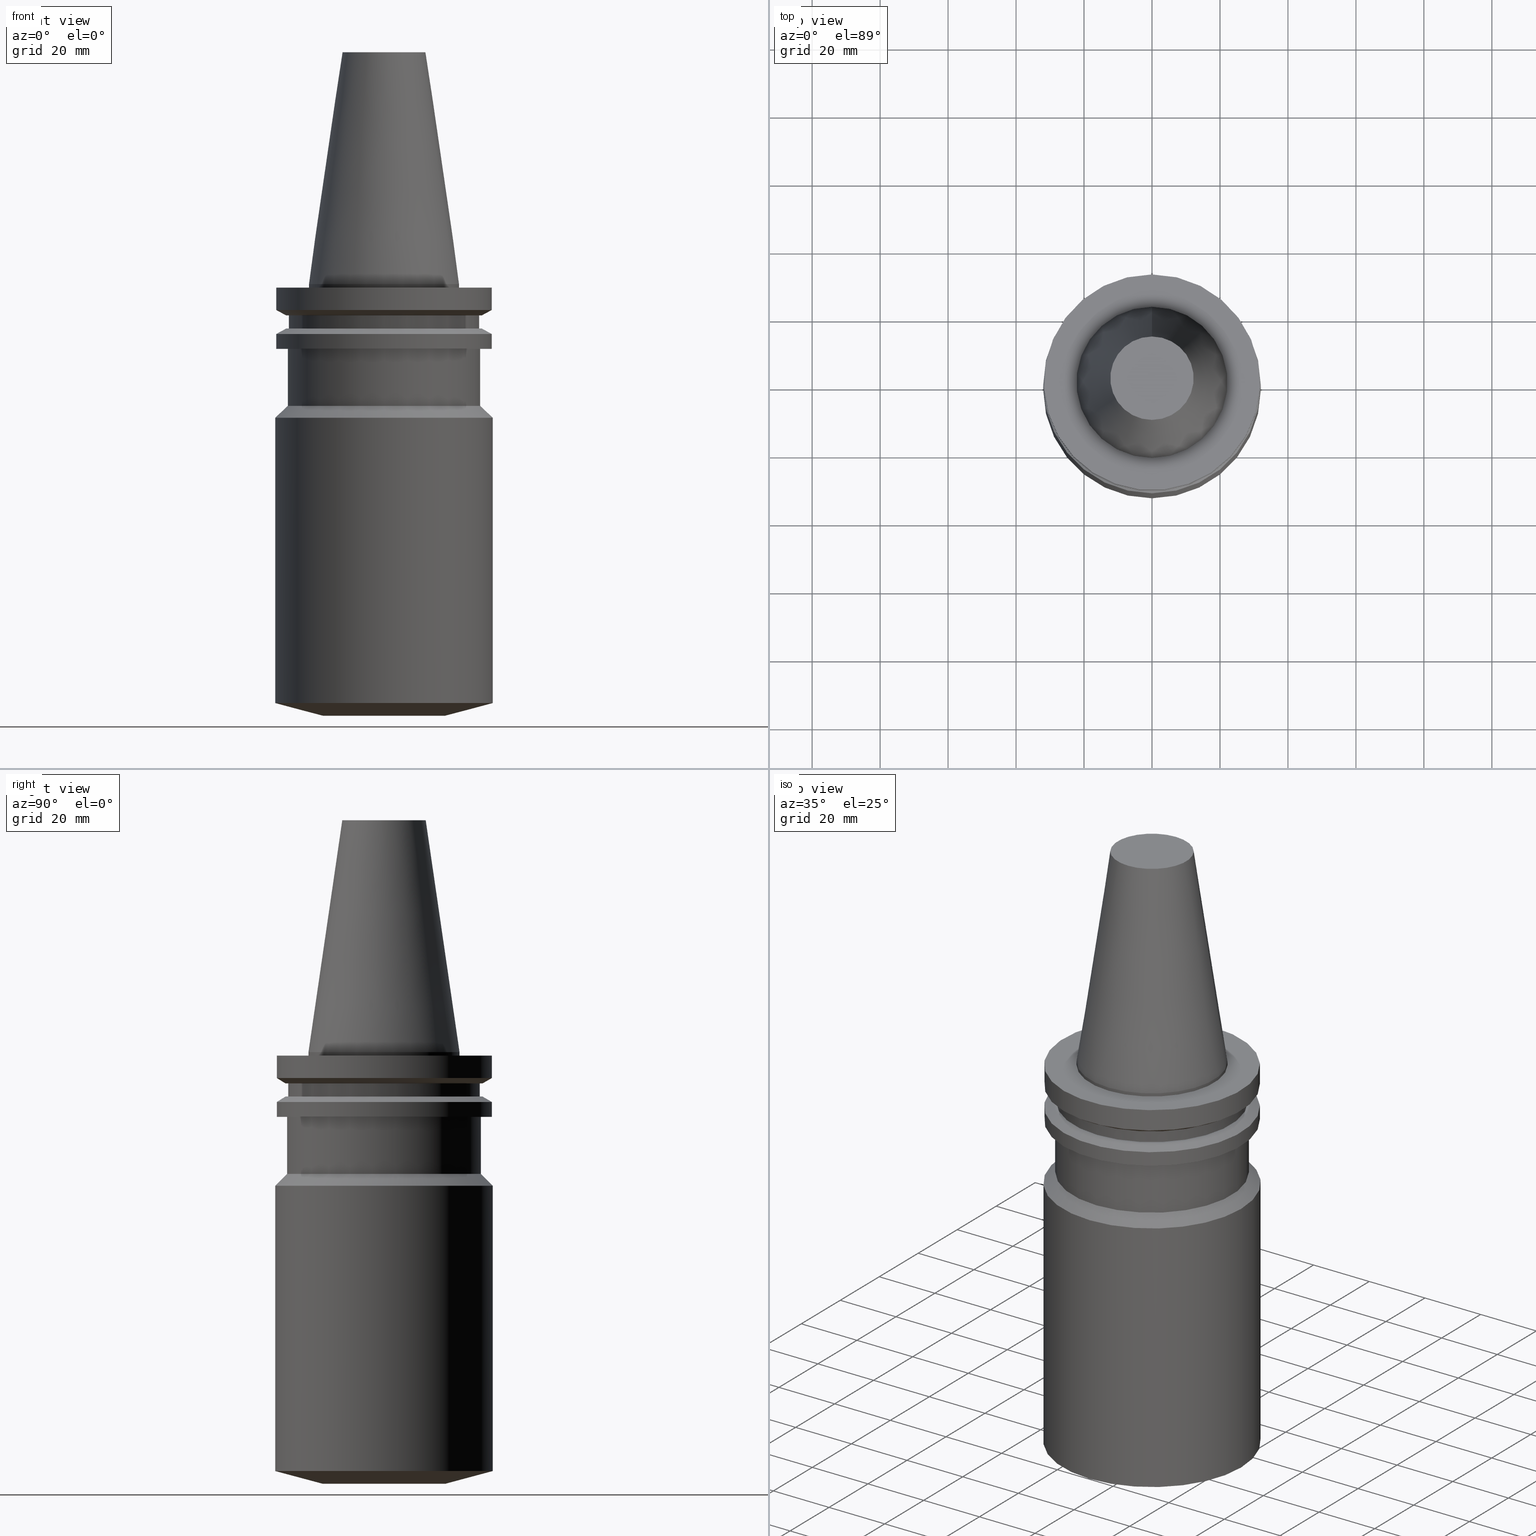
[diagram: canonical four-view strip — front | top / right | iso, engineering-drawing reading convention]
A machine part, canonical four-view strip (front | top / right | iso — engineering-drawing reading convention). The complete STEP part file that produces these views, byte-faithful:
ISO-10303-21;
HEADER;
FILE_DESCRIPTION((''),'1');
FILE_NAME('V:/01_Dxf_Field-HP\X2\FF71FF6FFF8CFF9F5916\X0\2013/BIGKAISER\X2\FF76FF80FF9BFF78FF9E63B28F095206\X0\_BKUS_201803/BCV40Y-BSL/BCV40Y-BSL1.250-5.stp','2018-03-13T06:26:53',(''),(''),'Spatial Interop R21 SP3','Kubotek KeyCreator 2011 V10.0.2 (22737)',' ');
FILE_SCHEMA(('automotive_design'));
ENDSEC;
DATA;
#1=MECHANICAL_DESIGN_GEOMETRIC_PRESENTATION_REPRESENTATION(' ',(#10,#11,#12,#13,#14,#15,#16,#17,#18,#19,#20,#21,#22,#23,#24,#25,#26,#27,#28,#29,#30,#31,#32,#33,#34,#35,#36,#37,#38,#39,#40,#41,#42,#43),#6);
#2=PRODUCT_DEFINITION_CONTEXT('',#44,'design');
#3=APPLICATION_PROTOCOL_DEFINITION('INTERNATIONAL STANDARD','automotive_design',1994,#44);
#4=PRODUCT_CATEGORY_RELATIONSHIP('NONE','NONE',#45,#46);
#5=SHAPE_DEFINITION_REPRESENTATION(#47,#48);
#6= (GEOMETRIC_REPRESENTATION_CONTEXT(3)GLOBAL_UNCERTAINTY_ASSIGNED_CONTEXT((#51))GLOBAL_UNIT_ASSIGNED_CONTEXT((#53,#54,#55))REPRESENTATION_CONTEXT('NONE','WORKSPACE'));
#10=STYLED_ITEM('',(#57,#58),#59);
#11=STYLED_ITEM('',(#60,#61),#62);
#12=STYLED_ITEM('',(#63,#64),#65);
#13=STYLED_ITEM('',(#66),#67);
#14=STYLED_ITEM('',(#68,#69),#70);
#15=STYLED_ITEM('',(#71),#72);
#16=STYLED_ITEM('',(#73),#74);
#17=STYLED_ITEM('',(#75),#76);
#18=STYLED_ITEM('',(#77,#78),#79);
#19=STYLED_ITEM('',(#80),#81);
#20=STYLED_ITEM('',(#82),#83);
#21=STYLED_ITEM('',(#84,#85),#86);
#22=STYLED_ITEM('',(#87,#88),#89);
#23=STYLED_ITEM('',(#90),#91);
#24=STYLED_ITEM('',(#92),#93);
#25=STYLED_ITEM('',(#94,#95),#96);
#26=STYLED_ITEM('',(#97,#98),#99);
#27=STYLED_ITEM('',(#100,#101),#102);
#28=STYLED_ITEM('',(#103),#104);
#29=STYLED_ITEM('',(#105),#106);
#30=STYLED_ITEM('',(#107),#108);
#31=STYLED_ITEM('',(#109),#110);
#32=STYLED_ITEM('',(#111),#112);
#33=STYLED_ITEM('',(#113,#114),#115);
#34=STYLED_ITEM('',(#116,#117),#118);
#35=STYLED_ITEM('',(#119,#120),#121);
#36=STYLED_ITEM('',(#122),#123);
#37=STYLED_ITEM('',(#124,#125),#126);
#38=STYLED_ITEM('',(#127,#128),#129);
#39=STYLED_ITEM('',(#130,#131),#132);
#40=STYLED_ITEM('',(#133,#134),#135);
#41=STYLED_ITEM('',(#136),#137);
#42=STYLED_ITEM('',(#138,#139),#140);
#43=STYLED_ITEM('',(#141),#142);
#44=APPLICATION_CONTEXT(' ');
#45=PRODUCT_CATEGORY('part','NONE');
#46=PRODUCT_RELATED_PRODUCT_CATEGORY('detail',' ',(#143));
#47=PRODUCT_DEFINITION_SHAPE('NONE','NONE',#144);
#48=ADVANCED_BREP_SHAPE_REPRESENTATION('Unnamed[1]',(#132,#145),#6);
#51=UNCERTAINTY_MEASURE_WITH_UNIT(LENGTH_MEASURE(1.0E-006),#53,'','');
#53= (CONVERSION_BASED_UNIT('MILLIMETRE',#148)LENGTH_UNIT()NAMED_UNIT(#151));
#54= (NAMED_UNIT(#153)PLANE_ANGLE_UNIT()SI_UNIT($,.RADIAN.));
#55= (NAMED_UNIT(#153)SOLID_ANGLE_UNIT()SI_UNIT($,.STERADIAN.));
#57=PRESENTATION_STYLE_ASSIGNMENT((#159));
#58=PRESENTATION_STYLE_ASSIGNMENT((#160));
#59=ADVANCED_FACE('Unnamed[1]',(#161,#162),#163,.T.);
#60=PRESENTATION_STYLE_ASSIGNMENT((#164));
#61=PRESENTATION_STYLE_ASSIGNMENT((#165));
#62=ADVANCED_FACE('Unnamed[1]',(#166,#167),#168,.T.);
#63=PRESENTATION_STYLE_ASSIGNMENT((#169));
#64=PRESENTATION_STYLE_ASSIGNMENT((#170));
#65=ADVANCED_FACE('Unnamed[1]',(#171,#172),#173,.T.);
#66=PRESENTATION_STYLE_ASSIGNMENT((#174));
#67=EDGE_CURVE('Unnamed[1]',#175,#175,#176,.T.);
#68=PRESENTATION_STYLE_ASSIGNMENT((#177));
#69=PRESENTATION_STYLE_ASSIGNMENT((#178));
#70=ADVANCED_FACE('Unnamed[1]',(#179,#180),#181,.T.);
#71=PRESENTATION_STYLE_ASSIGNMENT((#182));
#72=EDGE_CURVE('Unnamed[1]',#183,#183,#184,.T.);
#73=PRESENTATION_STYLE_ASSIGNMENT((#185));
#74=EDGE_CURVE('Unnamed[1]',#186,#186,#187,.T.);
#75=PRESENTATION_STYLE_ASSIGNMENT((#188));
#76=EDGE_CURVE('Unnamed[1]',#189,#189,#190,.T.);
#77=PRESENTATION_STYLE_ASSIGNMENT((#191));
#78=PRESENTATION_STYLE_ASSIGNMENT((#192));
#79=ADVANCED_FACE('Unnamed[1]',(#193,#194),#195,.T.);
#80=PRESENTATION_STYLE_ASSIGNMENT((#196));
#81=EDGE_CURVE('Unnamed[1]',#197,#197,#198,.T.);
#82=PRESENTATION_STYLE_ASSIGNMENT((#199));
#83=EDGE_CURVE('Unnamed[1]',#200,#200,#201,.T.);
#84=PRESENTATION_STYLE_ASSIGNMENT((#202));
#85=PRESENTATION_STYLE_ASSIGNMENT((#203));
#86=ADVANCED_FACE('Unnamed[1]',(#204,#205),#206,.T.);
#87=PRESENTATION_STYLE_ASSIGNMENT((#207));
#88=PRESENTATION_STYLE_ASSIGNMENT((#208));
#89=ADVANCED_FACE('Unnamed[1]',(#209,#210),#211,.T.);
#90=PRESENTATION_STYLE_ASSIGNMENT((#212));
#91=EDGE_CURVE('Unnamed[1]',#213,#213,#214,.T.);
#92=PRESENTATION_STYLE_ASSIGNMENT((#215));
#93=EDGE_CURVE('Unnamed[1]',#216,#216,#217,.T.);
#94=PRESENTATION_STYLE_ASSIGNMENT((#218));
#95=PRESENTATION_STYLE_ASSIGNMENT((#219));
#96=ADVANCED_FACE('Unnamed[1]',(#220,#221),#222,.T.);
#97=PRESENTATION_STYLE_ASSIGNMENT((#223));
#98=PRESENTATION_STYLE_ASSIGNMENT((#224));
#99=ADVANCED_FACE('Unnamed[1]',(#225,#226),#227,.T.);
#100=PRESENTATION_STYLE_ASSIGNMENT((#228));
#101=PRESENTATION_STYLE_ASSIGNMENT((#229));
#102=ADVANCED_FACE('Unnamed[1]',(#230,#231),#232,.T.);
#103=PRESENTATION_STYLE_ASSIGNMENT((#233));
#104=EDGE_CURVE('Unnamed[1]',#234,#234,#235,.T.);
#105=PRESENTATION_STYLE_ASSIGNMENT((#236));
#106=EDGE_CURVE('Unnamed[1]',#237,#237,#238,.T.);
#107=PRESENTATION_STYLE_ASSIGNMENT((#239));
#108=EDGE_CURVE('Unnamed[1]',#240,#240,#241,.T.);
#109=PRESENTATION_STYLE_ASSIGNMENT((#242));
#110=EDGE_CURVE('Unnamed[1]',#243,#243,#244,.T.);
#111=PRESENTATION_STYLE_ASSIGNMENT((#245));
#112=EDGE_CURVE('Unnamed[1]',#246,#246,#247,.T.);
#113=PRESENTATION_STYLE_ASSIGNMENT((#248));
#114=PRESENTATION_STYLE_ASSIGNMENT((#249));
#115=ADVANCED_FACE('Unnamed[1]',(#250,#251),#252,.T.);
#116=PRESENTATION_STYLE_ASSIGNMENT((#253));
#117=PRESENTATION_STYLE_ASSIGNMENT((#254));
#118=ADVANCED_FACE('Unnamed[1]',(#255,#256),#257,.T.);
#119=PRESENTATION_STYLE_ASSIGNMENT((#258));
#120=PRESENTATION_STYLE_ASSIGNMENT((#259));
#121=ADVANCED_FACE('Unnamed[1]',(#260),#261,.T.);
#122=PRESENTATION_STYLE_ASSIGNMENT((#262));
#123=EDGE_CURVE('Unnamed[1]',#263,#263,#264,.T.);
#124=PRESENTATION_STYLE_ASSIGNMENT((#265));
#125=PRESENTATION_STYLE_ASSIGNMENT((#266));
#126=ADVANCED_FACE('Unnamed[1]',(#267,#268),#269,.T.);
#127=PRESENTATION_STYLE_ASSIGNMENT((#270));
#128=PRESENTATION_STYLE_ASSIGNMENT((#271));
#129=ADVANCED_FACE('Unnamed[1]',(#272),#273,.T.);
#130=PRESENTATION_STYLE_ASSIGNMENT((#274));
#131=PRESENTATION_STYLE_ASSIGNMENT((#275));
#132=MANIFOLD_SOLID_BREP('Unnamed[1]',#276);
#133=PRESENTATION_STYLE_ASSIGNMENT((#277));
#134=PRESENTATION_STYLE_ASSIGNMENT((#278));
#135=ADVANCED_FACE('Unnamed[1]',(#279,#280),#281,.T.);
#136=PRESENTATION_STYLE_ASSIGNMENT((#282));
#137=EDGE_CURVE('Unnamed[1]',#283,#283,#284,.T.);
#138=PRESENTATION_STYLE_ASSIGNMENT((#285));
#139=PRESENTATION_STYLE_ASSIGNMENT((#286));
#140=ADVANCED_FACE('Unnamed[1]',(#287,#288),#289,.T.);
#141=PRESENTATION_STYLE_ASSIGNMENT((#290));
#142=EDGE_CURVE('Unnamed[1]',#291,#291,#292,.T.);
#143=PRODUCT('Unnamed[1]','Unnamed[1]','PART-Unnamed[1]-DESC',(#293));
#144=PRODUCT_DEFINITION('NONE','NONE',#294,#2);
#145=AXIS2_PLACEMENT_3D('',#295,#296,#297);
#148=LENGTH_MEASURE_WITH_UNIT(LENGTH_MEASURE(1.0),#298);
#151=DIMENSIONAL_EXPONENTS(1.0,0.0,0.0,0.0,0.0,0.0,0.0);
#153=DIMENSIONAL_EXPONENTS(0.0,0.0,0.0,0.0,0.0,0.0,0.0);
#159=SURFACE_STYLE_USAGE(.BOTH.,#299);
#160=CURVE_STYLE('',#300,POSITIVE_LENGTH_MEASURE(1000.0),#301);
#161=FACE_BOUND('',#302,.T.);
#162=FACE_BOUND('',#303,.T.);
#163=CYLINDRICAL_SURFACE('',#304,28.4999999999994);
#164=SURFACE_STYLE_USAGE(.BOTH.,#305);
#165=CURVE_STYLE('',#306,POSITIVE_LENGTH_MEASURE(1000.0),#307);
#166=FACE_BOUND('',#308,.T.);
#167=FACE_BOUND('',#309,.T.);
#168=CONICAL_SURFACE('',#310,30.365080955,1.04719755034994);
#169=SURFACE_STYLE_USAGE(.BOTH.,#311);
#170=CURVE_STYLE('',#312,POSITIVE_LENGTH_MEASURE(1000.0),#313);
#171=FACE_BOUND('',#314,.T.);
#172=FACE_BOUND('',#315,.T.);
#173=CYLINDRICAL_SURFACE('',#316,28.18);
#174=CURVE_STYLE('',#317,POSITIVE_LENGTH_MEASURE(1000.0),#318);
#175=VERTEX_POINT('',#319);
#176=CIRCLE('',#320,31.75);
#177=SURFACE_STYLE_USAGE(.BOTH.,#321);
#178=CURVE_STYLE('',#322,POSITIVE_LENGTH_MEASURE(1000.0),#323);
#179=FACE_BOUND('',#324,.T.);
#180=FACE_BOUND('',#325,.T.);
#181=CONICAL_SURFACE('',#326,17.2484375007384,0.144812498217751);
#182=CURVE_STYLE('',#327,POSITIVE_LENGTH_MEASURE(1000.0),#328);
#183=VERTEX_POINT('',#329);
#184=CIRCLE('',#330,22.225);
#185=CURVE_STYLE('',#331,POSITIVE_LENGTH_MEASURE(1000.0),#332);
#186=VERTEX_POINT('',#333);
#187=CIRCLE('',#334,31.75);
#188=CURVE_STYLE('',#335,POSITIVE_LENGTH_MEASURE(1000.0),#336);
#189=VERTEX_POINT('',#337);
#190=CIRCLE('',#338,28.95591319);
#191=SURFACE_STYLE_USAGE(.BOTH.,#339);
#192=CURVE_STYLE('',#340,POSITIVE_LENGTH_MEASURE(1000.0),#341);
#193=FACE_BOUND('',#342,.T.);
#194=FACE_BOUND('',#343,.T.);
#195=CYLINDRICAL_SURFACE('',#344,32.0000000000387);
#196=CURVE_STYLE('',#345,POSITIVE_LENGTH_MEASURE(1000.0),#346);
#197=VERTEX_POINT('',#347);
#198=CIRCLE('',#348,22.225);
#199=CURVE_STYLE('',#349,POSITIVE_LENGTH_MEASURE(1000.0),#350);
#200=VERTEX_POINT('',#351);
#201=CIRCLE('',#352,28.18);
#202=SURFACE_STYLE_USAGE(.BOTH.,#353);
#203=CURVE_STYLE('',#354,POSITIVE_LENGTH_MEASURE(1000.0),#355);
#204=FACE_BOUND('',#356,.T.);
#205=FACE_OUTER_BOUND('',#357,.T.);
#206=PLANE('',#358);
#207=SURFACE_STYLE_USAGE(.BOTH.,#359);
#208=CURVE_STYLE('',#360,POSITIVE_LENGTH_MEASURE(1000.0),#361);
#209=FACE_OUTER_BOUND('',#362,.T.);
#210=FACE_BOUND('',#363,.T.);
#211=PLANE('',#364);
#212=CURVE_STYLE('',#365,POSITIVE_LENGTH_MEASURE(1000.0),#366);
#213=VERTEX_POINT('',#367);
#214=CIRCLE('',#368,18.0000000000002);
#215=CURVE_STYLE('',#369,POSITIVE_LENGTH_MEASURE(1000.0),#370);
#216=VERTEX_POINT('',#371);
#217=CIRCLE('',#372,28.4999999999991);
#218=SURFACE_STYLE_USAGE(.BOTH.,#373);
#219=CURVE_STYLE('',#374,POSITIVE_LENGTH_MEASURE(1000.0),#375);
#220=FACE_BOUND('',#376,.T.);
#221=FACE_OUTER_BOUND('',#377,.T.);
#222=PLANE('',#378);
#223=SURFACE_STYLE_USAGE(.BOTH.,#379);
#224=CURVE_STYLE('',#380,POSITIVE_LENGTH_MEASURE(1000.0),#381);
#225=FACE_BOUND('',#382,.T.);
#226=FACE_BOUND('',#383,.T.);
#227=CONICAL_SURFACE('',#384,30.2500000000389,0.785398163397475);
#228=SURFACE_STYLE_USAGE(.BOTH.,#385);
#229=CURVE_STYLE('',#386,POSITIVE_LENGTH_MEASURE(1000.0),#387);
#230=FACE_BOUND('',#388,.T.);
#231=FACE_BOUND('',#389,.T.);
#232=CYLINDRICAL_SURFACE('',#390,22.225);
#233=CURVE_STYLE('',#391,POSITIVE_LENGTH_MEASURE(1000.0),#392);
#234=VERTEX_POINT('',#393);
#235=CIRCLE('',#394,31.75);
#236=CURVE_STYLE('',#395,POSITIVE_LENGTH_MEASURE(1000.0),#396);
#237=VERTEX_POINT('',#397);
#238=CIRCLE('',#398,28.98016191);
#239=CURVE_STYLE('',#399,POSITIVE_LENGTH_MEASURE(1000.0),#400);
#240=VERTEX_POINT('',#401);
#241=CIRCLE('',#402,32.0000000000786);
#242=CURVE_STYLE('',#403,POSITIVE_LENGTH_MEASURE(1000.0),#404);
#243=VERTEX_POINT('',#405);
#244=CIRCLE('',#406,31.75);
#245=CURVE_STYLE('',#407,POSITIVE_LENGTH_MEASURE(1000.0),#408);
#246=VERTEX_POINT('',#409);
#247=CIRCLE('',#410,31.9999999999987);
#248=SURFACE_STYLE_USAGE(.BOTH.,#411);
#249=CURVE_STYLE('',#412,POSITIVE_LENGTH_MEASURE(1000.0),#413);
#250=FACE_BOUND('',#414,.T.);
#251=FACE_BOUND('',#415,.T.);
#252=CYLINDRICAL_SURFACE('',#416,31.75);
#253=SURFACE_STYLE_USAGE(.BOTH.,#417);
#254=CURVE_STYLE('',#418,POSITIVE_LENGTH_MEASURE(1000.0),#419);
#255=FACE_OUTER_BOUND('',#420,.T.);
#256=FACE_BOUND('',#421,.T.);
#257=PLANE('',#422);
#258=SURFACE_STYLE_USAGE(.BOTH.,#423);
#259=CURVE_STYLE('',#424,POSITIVE_LENGTH_MEASURE(1000.0),#425);
#260=FACE_OUTER_BOUND('',#426,.T.);
#261=PLANE('',#427);
#262=CURVE_STYLE('',#428,POSITIVE_LENGTH_MEASURE(1000.0),#429);
#263=VERTEX_POINT('',#430);
#264=CIRCLE('',#431,28.18);
#265=SURFACE_STYLE_USAGE(.BOTH.,#432);
#266=CURVE_STYLE('',#433,POSITIVE_LENGTH_MEASURE(1000.0),#434);
#267=FACE_BOUND('',#435,.T.);
#268=FACE_BOUND('',#436,.T.);
#269=CONICAL_SURFACE('',#437,30.352956595,1.04719755170464);
#270=SURFACE_STYLE_USAGE(.BOTH.,#438);
#271=CURVE_STYLE('',#439,POSITIVE_LENGTH_MEASURE(1000.0),#440);
#272=FACE_OUTER_BOUND('',#441,.T.);
#273=PLANE('',#442);
#274=SURFACE_STYLE_USAGE(.BOTH.,#443);
#275=CURVE_STYLE('',#444,POSITIVE_LENGTH_MEASURE(1000.0),#445);
#276=CLOSED_SHELL('',(#129,#70,#102,#89,#115,#62,#86,#65,#118,#126,#140,#96,#59,#99,#79,#135,#121));
#277=SURFACE_STYLE_USAGE(.BOTH.,#446);
#278=CURVE_STYLE('',#447,POSITIVE_LENGTH_MEASURE(1000.0),#448);
#279=FACE_BOUND('',#449,.T.);
#280=FACE_BOUND('',#450,.T.);
#281=CONICAL_SURFACE('',#451,24.9999999999995,1.30899693899575);
#282=CURVE_STYLE('',#452,POSITIVE_LENGTH_MEASURE(1000.0),#453);
#283=VERTEX_POINT('',#454);
#284=CIRCLE('',#455,12.2718750014769);
#285=SURFACE_STYLE_USAGE(.BOTH.,#456);
#286=CURVE_STYLE('',#457,POSITIVE_LENGTH_MEASURE(1000.0),#458);
#287=FACE_BOUND('',#459,.T.);
#288=FACE_BOUND('',#460,.T.);
#289=CYLINDRICAL_SURFACE('',#461,31.75);
#290=CURVE_STYLE('',#462,POSITIVE_LENGTH_MEASURE(1000.0),#463);
#291=VERTEX_POINT('',#464);
#292=CIRCLE('',#465,28.4999999999997);
#293=PRODUCT_CONTEXT('',#44,'mechanical');
#294=PRODUCT_DEFINITION_FORMATION_WITH_SPECIFIED_SOURCE(' ','NONE',#143,.NOT_KNOWN.);
#295=CARTESIAN_POINT('',(0.0,0.0,0.0));
#296=DIRECTION('',(0.0,0.0,1.0));
#297=DIRECTION('',(1.0,0.0,0.0));
#298= (NAMED_UNIT(#151)LENGTH_UNIT()SI_UNIT(.MILLI.,.METRE.));
#299=SURFACE_SIDE_STYLE('',(#467));
#300=DRAUGHTING_PRE_DEFINED_CURVE_FONT('continuous');
#301=COLOUR_RGB('',0.0,1.0,0.0);
#302=EDGE_LOOP('',(#468));
#303=EDGE_LOOP('',(#469));
#304=AXIS2_PLACEMENT_3D('',#470,#471,#472);
#305=SURFACE_SIDE_STYLE('',(#473));
#306=DRAUGHTING_PRE_DEFINED_CURVE_FONT('continuous');
#307=COLOUR_RGB('',0.0,1.0,0.0);
#308=EDGE_LOOP('',(#474));
#309=EDGE_LOOP('',(#475));
#310=AXIS2_PLACEMENT_3D('',#476,#477,#478);
#311=SURFACE_SIDE_STYLE('',(#479));
#312=DRAUGHTING_PRE_DEFINED_CURVE_FONT('continuous');
#313=COLOUR_RGB('',0.0,1.0,0.0);
#314=EDGE_LOOP('',(#480));
#315=EDGE_LOOP('',(#481));
#316=AXIS2_PLACEMENT_3D('',#482,#483,#484);
#317=DRAUGHTING_PRE_DEFINED_CURVE_FONT('continuous');
#318=COLOUR_RGB('',0.0,1.0,0.0);
#319=CARTESIAN_POINT('',(6.12323399573673E-017,31.75,-0.999999999999996));
#320=AXIS2_PLACEMENT_3D('',#485,#486,#487);
#321=SURFACE_SIDE_STYLE('',(#488));
#322=DRAUGHTING_PRE_DEFINED_CURVE_FONT('continuous');
#323=COLOUR_RGB('',0.0,1.0,0.0);
#324=EDGE_LOOP('',(#489));
#325=EDGE_LOOP('',(#490));
#326=AXIS2_PLACEMENT_3D('',#491,#492,#493);
#327=DRAUGHTING_PRE_DEFINED_CURVE_FONT('continuous');
#328=COLOUR_RGB('',0.0,1.0,0.0);
#329=CARTESIAN_POINT('',(-2.73944275289641E-031,22.225,2.72177751110499E-015));
#330=AXIS2_PLACEMENT_3D('',#494,#495,#496);
#331=DRAUGHTING_PRE_DEFINED_CURVE_FONT('continuous');
#332=COLOUR_RGB('',0.0,1.0,0.0);
#333=CARTESIAN_POINT('',(4.65416804298617E-016,31.75,-7.60083323));
#334=AXIS2_PLACEMENT_3D('',#497,#498,#499);
#335=DRAUGHTING_PRE_DEFINED_CURVE_FONT('continuous');
#336=COLOUR_RGB('',0.0,1.0,0.0);
#337=CARTESIAN_POINT('',(7.98469713044073E-016,28.95591319,-13.04));
#338=AXIS2_PLACEMENT_3D('',#500,#501,#502);
#339=SURFACE_SIDE_STYLE('',(#503));
#340=DRAUGHTING_PRE_DEFINED_CURVE_FONT('continuous');
#341=COLOUR_RGB('',0.0,1.0,0.0);
#342=EDGE_LOOP('',(#504));
#343=EDGE_LOOP('',(#505));
#344=AXIS2_PLACEMENT_3D('',#506,#507,#508);
#345=DRAUGHTING_PRE_DEFINED_CURVE_FONT('continuous');
#346=COLOUR_RGB('',0.0,1.0,0.0);
#347=CARTESIAN_POINT('',(6.12323399573674E-017,22.225,-0.999999999999997));
#348=AXIS2_PLACEMENT_3D('',#509,#510,#511);
#349=DRAUGHTING_PRE_DEFINED_CURVE_FONT('continuous');
#350=COLOUR_RGB('',0.0,1.0,0.0);
#351=CARTESIAN_POINT('',(5.63337527607782E-016,28.18,-9.2));
#352=AXIS2_PLACEMENT_3D('',#512,#513,#514);
#353=SURFACE_SIDE_STYLE('',(#515));
#354=DRAUGHTING_PRE_DEFINED_CURVE_FONT('continuous');
#355=COLOUR_RGB('',0.0,1.0,0.0);
#356=EDGE_LOOP('',(#516));
#357=EDGE_LOOP('',(#517));
#358=AXIS2_PLACEMENT_3D('',#518,#519,#520);
#359=SURFACE_SIDE_STYLE('',(#521));
#360=DRAUGHTING_PRE_DEFINED_CURVE_FONT('continuous');
#361=COLOUR_RGB('',0.0,1.0,0.0);
#362=EDGE_LOOP('',(#522));
#363=EDGE_LOOP('',(#523));
#364=AXIS2_PLACEMENT_3D('',#524,#525,#526);
#365=DRAUGHTING_PRE_DEFINED_CURVE_FONT('continuous');
#366=COLOUR_RGB('',0.0,1.0,0.0);
#367=CARTESIAN_POINT('',(7.77650717458561E-015,18.0000000000003,-126.999999999999));
#368=AXIS2_PLACEMENT_3D('',#527,#528,#529);
#369=DRAUGHTING_PRE_DEFINED_CURVE_FONT('continuous');
#370=COLOUR_RGB('',0.0,1.0,0.0);
#371=CARTESIAN_POINT('',(2.19211777047378E-015,28.4999999999991,-35.8000000000003));
#372=AXIS2_PLACEMENT_3D('',#530,#531,#532);
#373=SURFACE_SIDE_STYLE('',(#533));
#374=DRAUGHTING_PRE_DEFINED_CURVE_FONT('continuous');
#375=COLOUR_RGB('',0.0,1.0,0.0);
#376=EDGE_LOOP('',(#534));
#377=EDGE_LOOP('',(#535));
#378=AXIS2_PLACEMENT_3D('',#536,#537,#538);
#379=SURFACE_SIDE_STYLE('',(#539));
#380=DRAUGHTING_PRE_DEFINED_CURVE_FONT('continuous');
#381=COLOUR_RGB('',0.0,1.0,0.0);
#382=EDGE_LOOP('',(#540));
#383=EDGE_LOOP('',(#541));
#384=AXIS2_PLACEMENT_3D('',#542,#543,#544);
#385=SURFACE_SIDE_STYLE('',(#545));
#386=DRAUGHTING_PRE_DEFINED_CURVE_FONT('continuous');
#387=COLOUR_RGB('',0.0,1.0,0.0);
#388=EDGE_LOOP('',(#546));
#389=EDGE_LOOP('',(#547));
#390=AXIS2_PLACEMENT_3D('',#548,#549,#550);
#391=DRAUGHTING_PRE_DEFINED_CURVE_FONT('continuous');
#392=COLOUR_RGB('',0.0,1.0,0.0);
#393=CARTESIAN_POINT('',(1.16647607618785E-015,31.75,-19.05));
#394=AXIS2_PLACEMENT_3D('',#551,#552,#553);
#395=DRAUGHTING_PRE_DEFINED_CURVE_FONT('continuous');
#396=COLOUR_RGB('',0.0,1.0,0.0);
#397=CARTESIAN_POINT('',(5.63337527607782E-016,28.98016191,-9.2));
#398=AXIS2_PLACEMENT_3D('',#554,#555,#556);
#399=DRAUGHTING_PRE_DEFINED_CURVE_FONT('continuous');
#400=COLOUR_RGB('',0.0,1.0,0.0);
#401=CARTESIAN_POINT('',(2.40643096032942E-015,32.0000000000786,-39.3000000000795));
#402=AXIS2_PLACEMENT_3D('',#557,#558,#559);
#403=DRAUGHTING_PRE_DEFINED_CURVE_FONT('continuous');
#404=COLOUR_RGB('',0.0,1.0,0.0);
#405=CARTESIAN_POINT('',(8.97247689112643E-016,31.75,-14.65316677));
#406=AXIS2_PLACEMENT_3D('',#560,#561,#562);
#407=DRAUGHTING_PRE_DEFINED_CURVE_FONT('continuous');
#408=COLOUR_RGB('',0.0,1.0,0.0);
#409=CARTESIAN_POINT('',(7.54680698999421E-015,31.9999999999988,-123.248711305963));
#410=AXIS2_PLACEMENT_3D('',#563,#564,#565);
#411=SURFACE_SIDE_STYLE('',(#566));
#412=DRAUGHTING_PRE_DEFINED_CURVE_FONT('continuous');
#413=COLOUR_RGB('',0.0,1.0,0.0);
#414=EDGE_LOOP('',(#567));
#415=EDGE_LOOP('',(#568));
#416=AXIS2_PLACEMENT_3D('',#569,#570,#571);
#417=SURFACE_SIDE_STYLE('',(#572));
#418=DRAUGHTING_PRE_DEFINED_CURVE_FONT('continuous');
#419=COLOUR_RGB('',0.0,1.0,0.0);
#420=EDGE_LOOP('',(#573));
#421=EDGE_LOOP('',(#574));
#422=AXIS2_PLACEMENT_3D('',#575,#576,#577);
#423=SURFACE_SIDE_STYLE('',(#578));
#424=DRAUGHTING_PRE_DEFINED_CURVE_FONT('continuous');
#425=COLOUR_RGB('',0.0,1.0,0.0);
#426=EDGE_LOOP('',(#579));
#427=AXIS2_PLACEMENT_3D('',#580,#581,#582);
#428=DRAUGHTING_PRE_DEFINED_CURVE_FONT('continuous');
#429=COLOUR_RGB('',0.0,1.0,0.0);
#430=CARTESIAN_POINT('',(7.98469713044073E-016,28.18,-13.04));
#431=AXIS2_PLACEMENT_3D('',#583,#584,#585);
#432=SURFACE_SIDE_STYLE('',(#586));
#433=DRAUGHTING_PRE_DEFINED_CURVE_FONT('continuous');
#434=COLOUR_RGB('',0.0,1.0,0.0);
#435=EDGE_LOOP('',(#587));
#436=EDGE_LOOP('',(#588));
#437=AXIS2_PLACEMENT_3D('',#589,#590,#591);
#438=SURFACE_SIDE_STYLE('',(#592));
#439=DRAUGHTING_PRE_DEFINED_CURVE_FONT('continuous');
#440=COLOUR_RGB('',0.0,1.0,0.0);
#441=EDGE_LOOP('',(#593));
#442=AXIS2_PLACEMENT_3D('',#594,#595,#596);
#443=SURFACE_SIDE_STYLE('',(#597));
#444=DRAUGHTING_PRE_DEFINED_CURVE_FONT('continuous');
#445=COLOUR_RGB('',0.0,1.0,0.0);
#446=SURFACE_SIDE_STYLE('',(#598));
#447=DRAUGHTING_PRE_DEFINED_CURVE_FONT('continuous');
#448=COLOUR_RGB('',0.0,1.0,0.0);
#449=EDGE_LOOP('',(#599));
#450=EDGE_LOOP('',(#600));
#451=AXIS2_PLACEMENT_3D('',#601,#602,#603);
#452=DRAUGHTING_PRE_DEFINED_CURVE_FONT('continuous');
#453=COLOUR_RGB('',0.0,1.0,0.0);
#454=CARTESIAN_POINT('',(-4.17910720209034E-015,12.2718750014769,68.25));
#455=AXIS2_PLACEMENT_3D('',#604,#605,#606);
#456=SURFACE_SIDE_STYLE('',(#607));
#457=DRAUGHTING_PRE_DEFINED_CURVE_FONT('continuous');
#458=COLOUR_RGB('',0.0,1.0,0.0);
#459=EDGE_LOOP('',(#608));
#460=EDGE_LOOP('',(#609));
#461=AXIS2_PLACEMENT_3D('',#610,#611,#612);
#462=DRAUGHTING_PRE_DEFINED_CURVE_FONT('continuous');
#463=COLOUR_RGB('',0.0,1.0,0.0);
#464=CARTESIAN_POINT('',(1.16647607618785E-015,28.4999999999997,-19.05));
#465=AXIS2_PLACEMENT_3D('',#613,#614,#615);
#467=SURFACE_STYLE_FILL_AREA(#616);
#468=ORIENTED_EDGE('',*,*,#93,.F.);
#469=ORIENTED_EDGE('',*,*,#142,.T.);
#470=CARTESIAN_POINT('',(1.67929692333082E-015,3.35859384666163E-015,-27.4250000000001));
#471=DIRECTION('',(6.12323399573677E-017,1.22464679914724E-016,-1.0));
#472=DIRECTION('',(-1.23259516440786E-032,1.0,1.22464679914724E-016));
#473=SURFACE_STYLE_FILL_AREA(#617);
#474=ORIENTED_EDGE('',*,*,#106,.F.);
#475=ORIENTED_EDGE('',*,*,#74,.T.);
#476=CARTESIAN_POINT('',(5.143771659532E-016,1.0287543319064E-015,-8.40041661500001));
#477=DIRECTION('',(-6.12323399573677E-017,-1.22464679914778E-016,1.0));
#478=DIRECTION('',(-1.2325951644079E-032,1.0,1.22464679914778E-016));
#479=SURFACE_STYLE_FILL_AREA(#618);
#480=ORIENTED_EDGE('',*,*,#123,.F.);
#481=ORIENTED_EDGE('',*,*,#83,.T.);
#482=CARTESIAN_POINT('',(6.80903620325929E-016,1.36180724065186E-015,-11.12));
#483=DIRECTION('',(6.12323399573677E-017,1.22464679914742E-016,-1.0));
#484=DIRECTION('',(-1.23259516440753E-032,1.0,1.22464679914742E-016));
#485=CARTESIAN_POINT('',(6.12323399573677E-017,1.22464679914735E-016,-1.0));
#486=DIRECTION('',(6.12323399573677E-017,1.22464679914714E-016,-1.0));
#487=DIRECTION('',(-1.23259516440783E-032,1.0,1.22464679914714E-016));
#488=SURFACE_STYLE_FILL_AREA(#619);
#489=ORIENTED_EDGE('',*,*,#72,.F.);
#490=ORIENTED_EDGE('',*,*,#137,.T.);
#491=CARTESIAN_POINT('',(-2.08955360104517E-015,-4.17910720209034E-015,34.125));
#492=DIRECTION('',(6.12323399573677E-017,1.22464679914703E-016,-1.0));
#493=DIRECTION('',(-1.23259516440799E-032,1.0,1.22464679914703E-016));
#494=CARTESIAN_POINT('',(0.0,0.0,0.0));
#495=DIRECTION('',(6.12323399573677E-017,1.22464679914758E-016,-1.0));
#496=DIRECTION('',(-1.23259516440815E-032,1.0,1.22464679914758E-016));
#497=CARTESIAN_POINT('',(4.65416804298617E-016,9.30833608597234E-016,-7.60083323000001));
#498=DIRECTION('',(6.12323399573677E-017,1.22464679914714E-016,-1.0));
#499=DIRECTION('',(-1.23259516440783E-032,1.0,1.22464679914714E-016));
#500=CARTESIAN_POINT('',(7.98469713044074E-016,1.59693942608815E-015,-13.04));
#501=DIRECTION('',(6.12323399573677E-017,1.22464679914781E-016,-1.0));
#502=DIRECTION('',(-1.23259516440793E-032,1.0,1.22464679914781E-016));
#503=SURFACE_STYLE_FILL_AREA(#620);
#504=ORIENTED_EDGE('',*,*,#112,.F.);
#505=ORIENTED_EDGE('',*,*,#108,.T.);
#506=CARTESIAN_POINT('',(4.97661897516181E-015,9.95323795032362E-015,-81.2743556530214));
#507=DIRECTION('',(6.12323399573677E-017,1.22464679914713E-016,-1.0));
#508=DIRECTION('',(-1.23259516440802E-032,1.0,1.22464679914713E-016));
#509=CARTESIAN_POINT('',(6.12323399573677E-017,1.22464679914735E-016,-1.0));
#510=DIRECTION('',(6.12323399573677E-017,1.22464679914758E-016,-1.0));
#511=DIRECTION('',(-1.23259516440815E-032,1.0,1.22464679914758E-016));
#512=CARTESIAN_POINT('',(5.63337527607783E-016,1.12667505521557E-015,-9.2));
#513=DIRECTION('',(6.12323399573677E-017,1.22464679914742E-016,-1.0));
#514=DIRECTION('',(-1.23259516440753E-032,1.0,1.22464679914742E-016));
#515=SURFACE_STYLE_FILL_AREA(#621);
#516=ORIENTED_EDGE('',*,*,#83,.F.);
#517=ORIENTED_EDGE('',*,*,#106,.T.);
#518=CARTESIAN_POINT('',(5.63337527607782E-016,28.580080955,-9.2));
#519=DIRECTION('',(6.12323399573677E-017,1.22464679914735E-016,-1.0));
#520=DIRECTION('',(-1.23259516440783E-032,1.0,1.22464679914735E-016));
#521=SURFACE_STYLE_FILL_AREA(#622);
#522=ORIENTED_EDGE('',*,*,#67,.F.);
#523=ORIENTED_EDGE('',*,*,#81,.T.);
#524=CARTESIAN_POINT('',(6.12323399573673E-017,26.9875,-0.999999999999997));
#525=DIRECTION('',(-6.12323399573677E-017,-1.22464679914735E-016,1.0));
#526=DIRECTION('',(1.23259516440783E-032,-1.0,-1.22464679914735E-016));
#527=CARTESIAN_POINT('',(7.77650717458561E-015,1.55530143491712E-014,-126.999999999999));
#528=DIRECTION('',(6.12323399573677E-017,1.22464679914691E-016,-1.0));
#529=DIRECTION('',(-1.23259516440781E-032,1.0,1.22464679914691E-016));
#530=CARTESIAN_POINT('',(2.19211777047378E-015,4.38423554094756E-015,-35.8000000000003));
#531=DIRECTION('',(6.12323399573677E-017,1.22464679914725E-016,-1.0));
#532=DIRECTION('',(-1.23259516440787E-032,1.0,1.22464679914725E-016));
#533=SURFACE_STYLE_FILL_AREA(#623);
#534=ORIENTED_EDGE('',*,*,#142,.F.);
#535=ORIENTED_EDGE('',*,*,#104,.T.);
#536=CARTESIAN_POINT('',(1.16647607618785E-015,30.1249999999998,-19.05));
#537=DIRECTION('',(6.12323399573677E-017,1.22464679914735E-016,-1.0));
#538=DIRECTION('',(-1.23259516440783E-032,1.0,1.22464679914735E-016));
#539=SURFACE_STYLE_FILL_AREA(#624);
#540=ORIENTED_EDGE('',*,*,#108,.F.);
#541=ORIENTED_EDGE('',*,*,#93,.T.);
#542=CARTESIAN_POINT('',(2.2992743654016E-015,4.5985487308032E-015,-37.5500000000399));
#543=DIRECTION('',(6.12323399573677E-017,1.22464679914691E-016,-1.0));
#544=DIRECTION('',(-1.23259516440803E-032,1.0,1.22464679914691E-016));
#545=SURFACE_STYLE_FILL_AREA(#625);
#546=ORIENTED_EDGE('',*,*,#81,.F.);
#547=ORIENTED_EDGE('',*,*,#72,.T.);
#548=CARTESIAN_POINT('',(3.06161699786838E-017,6.12323399573676E-017,-0.5));
#549=DIRECTION('',(6.12323399573677E-017,1.22464679914758E-016,-1.0));
#550=DIRECTION('',(-1.23259516440815E-032,1.0,1.22464679914758E-016));
#551=CARTESIAN_POINT('',(1.16647607618785E-015,2.33295215237571E-015,-19.05));
#552=DIRECTION('',(6.12323399573677E-017,1.22464679914714E-016,-1.0));
#553=DIRECTION('',(-1.23259516440783E-032,1.0,1.22464679914714E-016));
#554=CARTESIAN_POINT('',(5.63337527607783E-016,1.12667505521557E-015,-9.2));
#555=DIRECTION('',(6.12323399573677E-017,1.22464679914736E-016,-1.0));
#556=DIRECTION('',(-1.23259516440798E-032,1.0,1.22464679914736E-016));
#557=CARTESIAN_POINT('',(2.40643096032942E-015,4.81286192065884E-015,-39.3000000000795));
#558=DIRECTION('',(6.12323399573677E-017,1.22464679914763E-016,-1.0));
#559=DIRECTION('',(-1.23259516440761E-032,1.0,1.22464679914763E-016));
#560=CARTESIAN_POINT('',(8.97247689112643E-016,1.79449537822529E-015,-14.65316677));
#561=DIRECTION('',(6.12323399573677E-017,1.22464679914714E-016,-1.0));
#562=DIRECTION('',(-1.23259516440783E-032,1.0,1.22464679914714E-016));
#563=CARTESIAN_POINT('',(7.54680698999421E-015,1.50936139799884E-014,-123.248711305963));
#564=DIRECTION('',(6.12323399573677E-017,1.22464679914765E-016,-1.0));
#565=DIRECTION('',(-1.23259516440788E-032,1.0,1.22464679914765E-016));
#566=SURFACE_STYLE_FILL_AREA(#626);
#567=ORIENTED_EDGE('',*,*,#74,.F.);
#568=ORIENTED_EDGE('',*,*,#67,.T.);
#569=CARTESIAN_POINT('',(2.63324572127992E-016,5.26649144255985E-016,-4.300416615));
#570=DIRECTION('',(6.12323399573677E-017,1.22464679914714E-016,-1.0));
#571=DIRECTION('',(-1.23259516440783E-032,1.0,1.22464679914714E-016));
#572=SURFACE_STYLE_FILL_AREA(#627);
#573=ORIENTED_EDGE('',*,*,#76,.F.);
#574=ORIENTED_EDGE('',*,*,#123,.T.);
#575=CARTESIAN_POINT('',(7.98469713044073E-016,28.567956595,-13.04));
#576=DIRECTION('',(-6.12323399573677E-017,-1.22464679914735E-016,1.0));
#577=DIRECTION('',(1.23259516440783E-032,-1.0,-1.22464679914735E-016));
#578=SURFACE_STYLE_FILL_AREA(#628);
#579=ORIENTED_EDGE('',*,*,#91,.T.);
#580=CARTESIAN_POINT('',(7.77650717458561E-015,9.00000000000014,-126.999999999999));
#581=DIRECTION('',(6.12323399573677E-017,1.22464679914735E-016,-1.0));
#582=DIRECTION('',(-1.23259516440783E-032,1.0,1.22464679914735E-016));
#583=CARTESIAN_POINT('',(7.98469713044074E-016,1.59693942608815E-015,-13.04));
#584=DIRECTION('',(6.12323399573677E-017,1.22464679914742E-016,-1.0));
#585=DIRECTION('',(-1.23259516440753E-032,1.0,1.22464679914742E-016));
#586=SURFACE_STYLE_FILL_AREA(#629);
#587=ORIENTED_EDGE('',*,*,#110,.F.);
#588=ORIENTED_EDGE('',*,*,#76,.T.);
#589=CARTESIAN_POINT('',(8.47858701078359E-016,1.69571740215672E-015,-13.846583385));
#590=DIRECTION('',(6.12323399573677E-017,1.22464679914693E-016,-1.0));
#591=DIRECTION('',(-1.23259516440788E-032,1.0,1.22464679914693E-016));
#592=SURFACE_STYLE_FILL_AREA(#630);
#593=ORIENTED_EDGE('',*,*,#137,.F.);
#594=CARTESIAN_POINT('',(-4.17910720209034E-015,6.13593750073843,68.25));
#595=DIRECTION('',(-6.12323399573677E-017,-1.22464679914735E-016,1.0));
#596=DIRECTION('',(1.23259516440783E-032,-1.0,-1.22464679914735E-016));
#597=SURFACE_STYLE_FILL_AREA(#631);
#598=SURFACE_STYLE_FILL_AREA(#632);
#599=ORIENTED_EDGE('',*,*,#91,.F.);
#600=ORIENTED_EDGE('',*,*,#112,.T.);
#601=CARTESIAN_POINT('',(7.66165708228991E-015,1.53233141645798E-014,-125.124355652981));
#602=DIRECTION('',(-6.12323399573677E-017,-1.22464679914674E-016,1.0));
#603=DIRECTION('',(-1.23259516440786E-032,1.0,1.22464679914674E-016));
#604=CARTESIAN_POINT('',(-4.17910720209034E-015,-8.35821440418068E-015,68.25));
#605=DIRECTION('',(6.12323399573677E-017,1.22464679914735E-016,-1.0));
#606=DIRECTION('',(-1.2325951644077E-032,1.0,1.22464679914735E-016));
#607=SURFACE_STYLE_FILL_AREA(#633);
#608=ORIENTED_EDGE('',*,*,#104,.F.);
#609=ORIENTED_EDGE('',*,*,#110,.T.);
#610=CARTESIAN_POINT('',(1.03186188265025E-015,2.0637237653005E-015,-16.851583385));
#611=DIRECTION('',(6.12323399573677E-017,1.22464679914714E-016,-1.0));
#612=DIRECTION('',(-1.23259516440783E-032,1.0,1.22464679914714E-016));
#613=CARTESIAN_POINT('',(1.16647607618785E-015,2.33295215237571E-015,-19.05));
#614=DIRECTION('',(6.12323399573677E-017,1.22464679914723E-016,-1.0));
#615=DIRECTION('',(-1.23259516440784E-032,1.0,1.22464679914723E-016));
#616=FILL_AREA_STYLE('',(#634));
#617=FILL_AREA_STYLE('',(#635));
#618=FILL_AREA_STYLE('',(#636));
#619=FILL_AREA_STYLE('',(#637));
#620=FILL_AREA_STYLE('',(#638));
#621=FILL_AREA_STYLE('',(#639));
#622=FILL_AREA_STYLE('',(#640));
#623=FILL_AREA_STYLE('',(#641));
#624=FILL_AREA_STYLE('',(#642));
#625=FILL_AREA_STYLE('',(#643));
#626=FILL_AREA_STYLE('',(#644));
#627=FILL_AREA_STYLE('',(#645));
#628=FILL_AREA_STYLE('',(#646));
#629=FILL_AREA_STYLE('',(#647));
#630=FILL_AREA_STYLE('',(#648));
#631=FILL_AREA_STYLE('',(#649));
#632=FILL_AREA_STYLE('',(#650));
#633=FILL_AREA_STYLE('',(#651));
#634=FILL_AREA_STYLE_COLOUR('',#652);
#635=FILL_AREA_STYLE_COLOUR('',#653);
#636=FILL_AREA_STYLE_COLOUR('',#654);
#637=FILL_AREA_STYLE_COLOUR('',#655);
#638=FILL_AREA_STYLE_COLOUR('',#656);
#639=FILL_AREA_STYLE_COLOUR('',#657);
#640=FILL_AREA_STYLE_COLOUR('',#658);
#641=FILL_AREA_STYLE_COLOUR('',#659);
#642=FILL_AREA_STYLE_COLOUR('',#660);
#643=FILL_AREA_STYLE_COLOUR('',#661);
#644=FILL_AREA_STYLE_COLOUR('',#662);
#645=FILL_AREA_STYLE_COLOUR('',#663);
#646=FILL_AREA_STYLE_COLOUR('',#664);
#647=FILL_AREA_STYLE_COLOUR('',#665);
#648=FILL_AREA_STYLE_COLOUR('',#666);
#649=FILL_AREA_STYLE_COLOUR('',#667);
#650=FILL_AREA_STYLE_COLOUR('',#668);
#651=FILL_AREA_STYLE_COLOUR('',#669);
#652=COLOUR_RGB('',0.0,1.0,0.0);
#653=COLOUR_RGB('',0.0,1.0,0.0);
#654=COLOUR_RGB('',0.0,1.0,0.0);
#655=COLOUR_RGB('',0.0,1.0,0.0);
#656=COLOUR_RGB('',0.0,1.0,0.0);
#657=COLOUR_RGB('',0.0,1.0,0.0);
#658=COLOUR_RGB('',0.0,1.0,0.0);
#659=COLOUR_RGB('',0.0,1.0,0.0);
#660=COLOUR_RGB('',0.0,1.0,0.0);
#661=COLOUR_RGB('',0.0,1.0,0.0);
#662=COLOUR_RGB('',0.0,1.0,0.0);
#663=COLOUR_RGB('',0.0,1.0,0.0);
#664=COLOUR_RGB('',0.0,1.0,0.0);
#665=COLOUR_RGB('',0.0,1.0,0.0);
#666=COLOUR_RGB('',0.0,1.0,0.0);
#667=COLOUR_RGB('',0.0,1.0,0.0);
#668=COLOUR_RGB('',0.0,1.0,0.0);
#669=COLOUR_RGB('',0.0,1.0,0.0);
ENDSEC;
END-ISO-10303-21;
